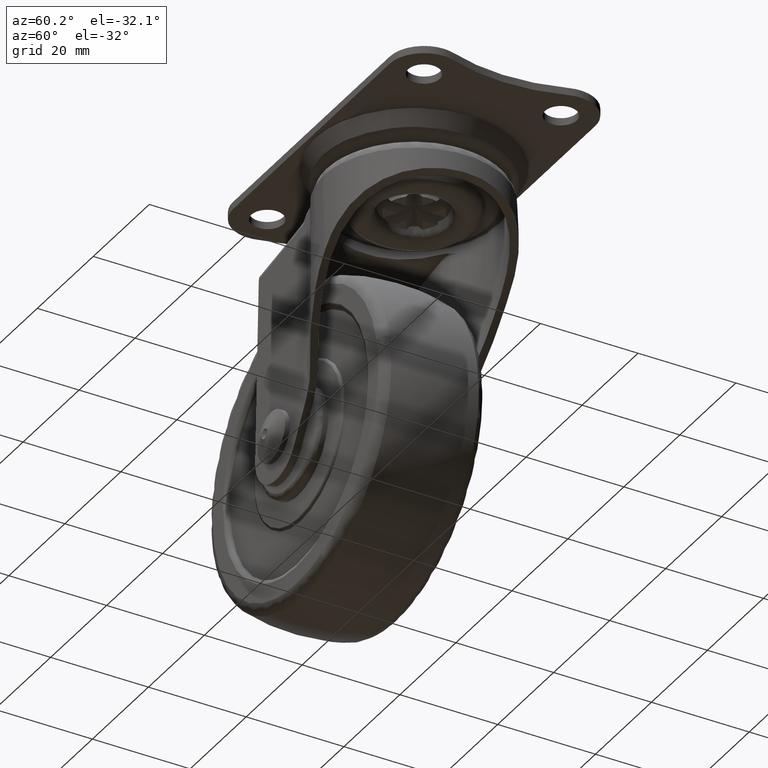
[diagram: clean part render]
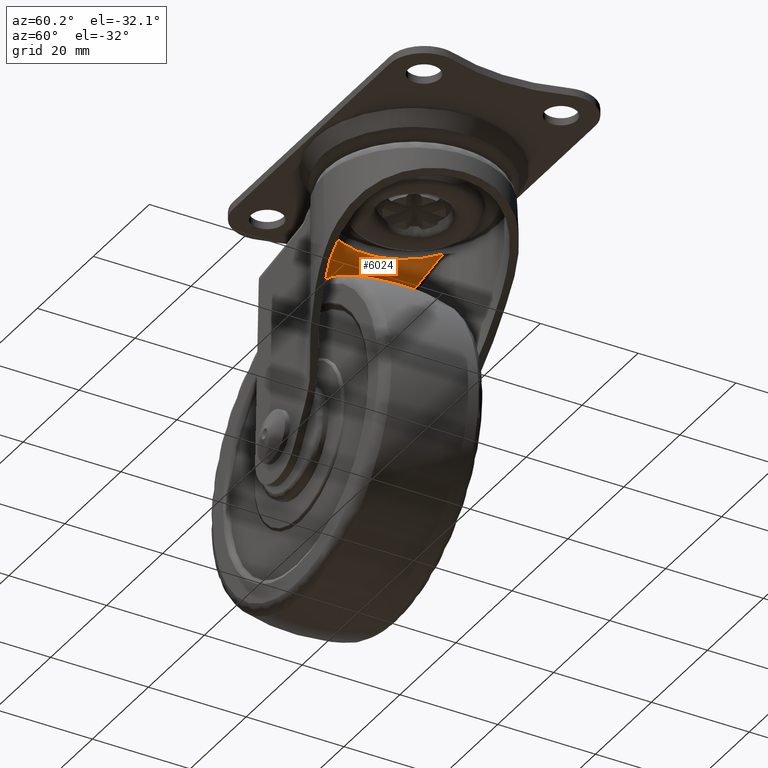
[diagram: same view with one face highlighted and labeled with its STEP entity id]
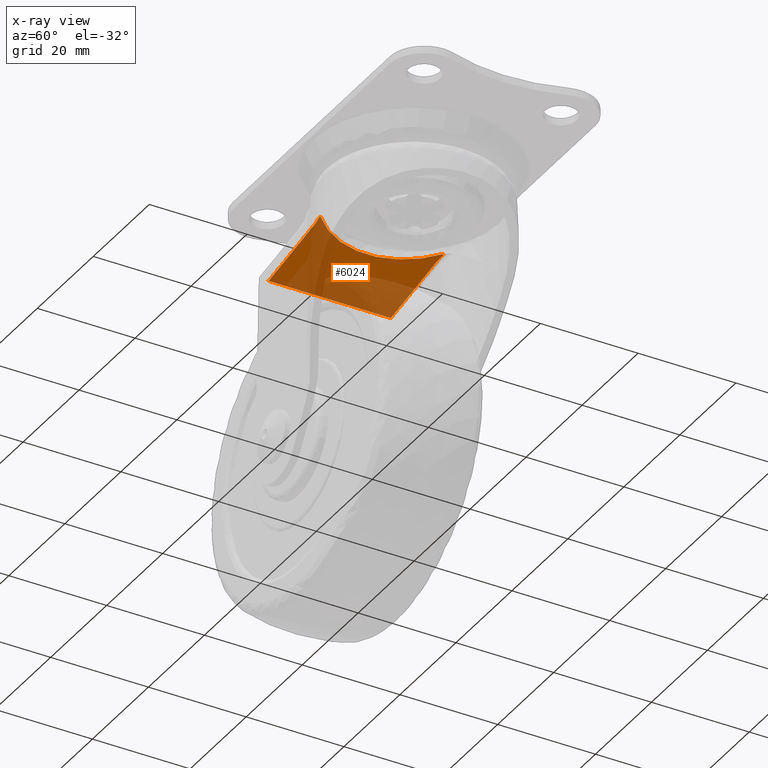
[diagram: x-ray of the same camera — body ghosted, the highlighted face saturated]
A machine part, auxiliary view. The second image highlights one B-rep face of the part: STEP entity #6024.
The next image is the same camera in x-ray: the body ghosted, the highlighted face saturated — about 55% of this face is hidden behind the body in this view.
In plain terms, the highlighted face is a freeform B-spline surface patch.
Its self-contained STEP definition (entity closure, byte-faithful):
#1458=CARTESIAN_POINT('',(-11.592670000000000,-12.434219922520780,-7.987479055953100));
#1459=VERTEX_POINT('',#1458);
#1467=CARTESIAN_POINT('',(-11.592670000000000,12.434219922521020,-7.987479055953130));
#1468=VERTEX_POINT('',#1467);
#1469=CARTESIAN_POINT('',(-11.592670000000000,12.434219922521020,-7.987479055953130));
#1470=CARTESIAN_POINT('',(-16.999994788543670,7.392863709826735,-8.940936222666915));
#1471=CARTESIAN_POINT('',(-16.999994788543670,1.853520E-013,-8.940936222666913));
#1472=CARTESIAN_POINT('',(-16.999994788543670,-7.392863709826518,-8.940936222666915));
#1473=CARTESIAN_POINT('',(-11.592670000000000,-12.434219922520770,-7.987479055953135));
#1481=(BOUNDED_CURVE()B_SPLINE_CURVE(2,(#1469,#1470,#1471,#1472,#1473),.UNSPECIFIED.,.F.,.U.)B_SPLINE_CURVE_WITH_KNOTS((3,2,3),(0.0,0.500000000000000,1.0),.UNSPECIFIED.)CURVE()GEOMETRIC_REPRESENTATION_ITEM()RATIONAL_B_SPLINE_CURVE((1.0,0.917039250455842,1.0,0.917039250455842,1.0))REPRESENTATION_ITEM(''));
#1482=EDGE_CURVE('',#1468,#1459,#1481,.T.);
#2468=CARTESIAN_POINT('',(-11.594912258849799,-12.709045057853780,-7.987874426650102));
#2469=VERTEX_POINT('',#2468);
#2480=CARTESIAN_POINT('',(-11.592670000000000,-12.689163693556541,-7.987479055953130));
#2481=VERTEX_POINT('',#2480);
#2482=CARTESIAN_POINT('',(-11.592670000000000,-12.689163693556541,-7.987479055953130));
#2483=CARTESIAN_POINT('',(-11.594912258849799,-12.709045057853780,-7.987874426650102));
#2484=QUASI_UNIFORM_CURVE('',1,(#2482,#2483),.UNSPECIFIED.,.F.,.U.);
#2485=EDGE_CURVE('',#2481,#2469,#2484,.T.);
#2537=CARTESIAN_POINT('',(-13.353313814693520,-12.500000000000000,-8.297928035586541));
#2538=VERTEX_POINT('',#2537);
#2549=CARTESIAN_POINT('',(-11.594912258849799,-12.709045057853780,-7.987874426650102));
#2550=CARTESIAN_POINT('',(-12.170373755013010,-12.570199076451530,-8.089343805528021));
#2551=CARTESIAN_POINT('',(-12.761832670351110,-12.499913512801649,-8.193633960770860));
#2552=CARTESIAN_POINT('',(-13.353313814693520,-12.500000000000000,-8.297928035586541));
#2553=B_SPLINE_CURVE_WITH_KNOTS('',3,(#2549,#2550,#2551,#2552),.UNSPECIFIED.,.F.,.U.,(4,4),(3.066924E-009,1.801818078961277),.UNSPECIFIED.);
#2554=EDGE_CURVE('',#2469,#2538,#2553,.T.);
#2583=CARTESIAN_POINT('',(-30.150002076337451,-12.500000301216120,-11.259640949174321));
#2584=VERTEX_POINT('',#2583);
#2595=CARTESIAN_POINT('',(-13.353313814693520,-12.500000000000000,-8.297928035586541));
#2596=CARTESIAN_POINT('',(-30.150002076337451,-12.500000301216120,-11.259640949174321));
#2597=QUASI_UNIFORM_CURVE('',1,(#2595,#2596),.UNSPECIFIED.,.F.,.U.);
#2598=EDGE_CURVE('',#2538,#2584,#2597,.T.);
#2681=CARTESIAN_POINT('',(-11.594912258849799,12.709045057853780,-7.987874426650102));
#2682=VERTEX_POINT('',#2681);
#2703=CARTESIAN_POINT('',(-11.592670000000000,12.689163693556440,-7.987479055953130));
#2704=VERTEX_POINT('',#2703);
#2712=CARTESIAN_POINT('',(-11.594912258849799,12.709045057853780,-7.987874426650102));
#2713=CARTESIAN_POINT('',(-11.592670000000000,12.689163693556440,-7.987479055953130));
#2714=QUASI_UNIFORM_CURVE('',1,(#2712,#2713),.UNSPECIFIED.,.F.,.U.);
#2715=EDGE_CURVE('',#2682,#2704,#2714,.T.);
#2758=CARTESIAN_POINT('',(-13.353313814693520,12.500000000000000,-8.297928035586541));
#2759=VERTEX_POINT('',#2758);
#2780=CARTESIAN_POINT('',(-13.353313814693520,12.500000000000000,-8.297928035586541));
#2781=CARTESIAN_POINT('',(-12.761832434972620,12.499913229004139,-8.193633919267288));
#2782=CARTESIAN_POINT('',(-12.170375622680890,12.570198807216300,-8.089344134848229));
#2783=CARTESIAN_POINT('',(-11.594912258849799,12.709045057853780,-7.987874426650102));
#2784=B_SPLINE_CURVE_WITH_KNOTS('',3,(#2780,#2781,#2782,#2783),.UNSPECIFIED.,.F.,.U.,(4,4),(3.066983E-009,1.801818078961277),.UNSPECIFIED.);
#2785=EDGE_CURVE('',#2759,#2682,#2784,.T.);
#2804=CARTESIAN_POINT('',(-30.150002076337451,12.500000000000000,-11.259640949174139));
#2805=VERTEX_POINT('',#2804);
#2824=CARTESIAN_POINT('',(-30.150002076337451,12.500000000000000,-11.259640949174139));
#2825=CARTESIAN_POINT('',(-13.353313814693520,12.500000000000000,-8.297928035586541));
#2826=QUASI_UNIFORM_CURVE('',1,(#2824,#2825),.UNSPECIFIED.,.F.,.U.);
#2827=EDGE_CURVE('',#2805,#2759,#2826,.T.);
#5871=CARTESIAN_POINT('',(-11.592670000000000,-12.434219922520780,-7.987479055953100));
#5872=CARTESIAN_POINT('',(-11.592670000000000,-12.689163693556541,-7.987479055953130));
#5873=QUASI_UNIFORM_CURVE('',1,(#5871,#5872),.UNSPECIFIED.,.F.,.U.);
#5874=EDGE_CURVE('',#1459,#2481,#5873,.T.);
#5999=CARTESIAN_POINT('',(-31.076940881140420,-13.978679087081870,-11.423081398385991));
#6000=CARTESIAN_POINT('',(-10.665732186551150,-13.978679087081870,-7.824034924910129));
#6001=CARTESIAN_POINT('',(-31.076940881140420,13.978679314337301,-11.423081398385991));
#6002=CARTESIAN_POINT('',(-10.665732186551150,13.978679314337301,-7.824034924910129));
#6003=B_SPLINE_SURFACE_WITH_KNOTS('',1,1,((#5999,#6001),(#6000,#6002)),.UNSPECIFIED.,.F.,.F.,.U.,(2,2),(2,2),(0.0,20.726084432239379),(0.0,27.957358401419171),.UNSPECIFIED.);
#6004=ORIENTED_EDGE('',*,*,#2785,.T.);
#6005=ORIENTED_EDGE('',*,*,#2715,.T.);
#6006=CARTESIAN_POINT('',(-11.592670000000000,12.689163693556440,-7.987479055953130));
#6007=CARTESIAN_POINT('',(-11.592670000000000,12.434219922521020,-7.987479055953130));
#6008=QUASI_UNIFORM_CURVE('',1,(#6006,#6007),.UNSPECIFIED.,.F.,.U.);
#6009=EDGE_CURVE('',#2704,#1468,#6008,.T.);
#6010=ORIENTED_EDGE('',*,*,#6009,.T.);
#6011=ORIENTED_EDGE('',*,*,#1482,.T.);
#6012=ORIENTED_EDGE('',*,*,#5874,.T.);
#6013=ORIENTED_EDGE('',*,*,#2485,.T.);
#6014=ORIENTED_EDGE('',*,*,#2554,.T.);
#6015=ORIENTED_EDGE('',*,*,#2598,.T.);
#6016=CARTESIAN_POINT('',(-30.150002076337451,-12.500000301216120,-11.259640949174321));
#6017=CARTESIAN_POINT('',(-30.150002076337451,12.500000000000000,-11.259640949174139));
#6018=QUASI_UNIFORM_CURVE('',1,(#6016,#6017),.UNSPECIFIED.,.F.,.U.);
#6019=EDGE_CURVE('',#2584,#2805,#6018,.T.);
#6020=ORIENTED_EDGE('',*,*,#6019,.T.);
#6021=ORIENTED_EDGE('',*,*,#2827,.T.);
#6022=EDGE_LOOP('',(#6004,#6005,#6010,#6011,#6012,#6013,#6014,#6015,#6020,#6021));
#6023=FACE_OUTER_BOUND('',#6022,.T.);
#6024=ADVANCED_FACE('',(#6023),#6003,.F.);